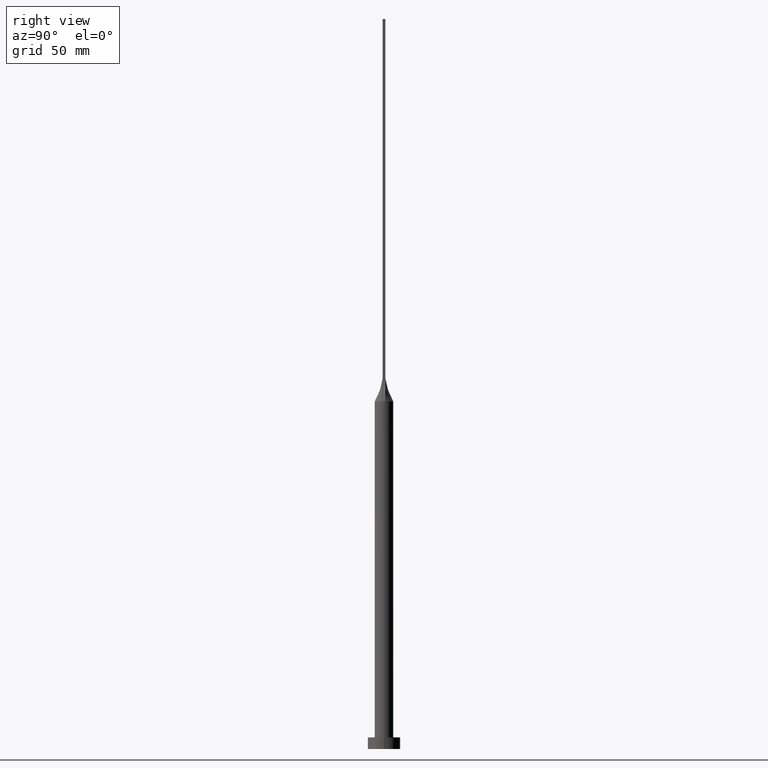
[diagram: clean part render]
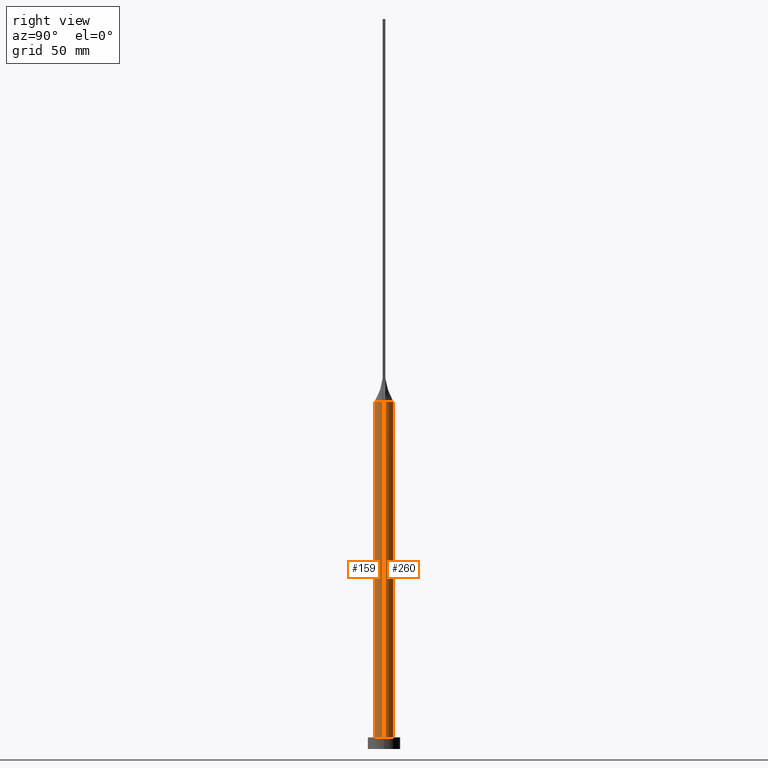
[diagram: same view with one multi-face feature highlighted, each face labeled with its STEP entity id]
A machine part, right view. The highlighted faces form ONE feature: a constant-radius fillet chain: 2 tangent blend faces with common blend radius 4 mm. The faces share edges in the B-rep.
Their STEP definitions:
[1] entity #159 (Cylinder):
#2 = DIRECTION ( 'NONE',  ( 0.000000000000000000, 0.000000000000000000, 1.000000000000000000 ) ) ;
#8 = DIRECTION ( 'NONE',  ( 0.000000000000000000, 0.000000000000000000, 1.000000000000000000 ) ) ;
#12 = CARTESIAN_POINT ( 'NONE',  ( 0.000000000000000000, 0.000000000000000000, 150.0000000000000000 ) ) ;
#37 = CARTESIAN_POINT ( 'NONE',  ( 0.000000000000000000, 0.000000000000000000, 150.0000000000000000 ) ) ;
#38 = CARTESIAN_POINT ( 'NONE',  ( 3.999842262273348936, 9.852009208038395466E-16, 150.0000000000000000 ) ) ;
#45 = CARTESIAN_POINT ( 'NONE',  ( -4.000000000000000000, 0.000000000000000000, 150.0000000000000000 ) ) ;
#50 = CARTESIAN_POINT ( 'NONE',  ( 4.000000000000000000, 4.898587196589412829E-16, 150.0000000000000000 ) ) ;
#74 = VERTEX_POINT ( 'NONE', #483 ) ;
#91 = ORIENTED_EDGE ( 'NONE', *, *, #470, .F. ) ;
#102 = CIRCLE ( 'NONE', #294, 4.000000000000000000 ) ;
#128 = VECTOR ( 'NONE', #317, 1000.000000000000000 ) ;
#131 = DIRECTION ( 'NONE',  ( 1.000000000000000000, 0.000000000000000000, 0.000000000000000000 ) ) ;
#136 = AXIS2_PLACEMENT_3D ( 'NONE', #12, #234, #417 ) ;
#151 = AXIS2_PLACEMENT_3D ( 'NONE', #530, #297, #443 ) ;
#159 = ADVANCED_FACE ( 'NONE', ( #212 ), #162, .T. ) ;
#162 = CYLINDRICAL_SURFACE ( 'NONE', #151, 4.000000000000000000 ) ;
#164 = CIRCLE ( 'NONE', #136, 4.000000000000000000 ) ;
#200 = EDGE_LOOP ( 'NONE', ( #91, #270, #469, #250, #233, #431 ) ) ;
#212 = FACE_OUTER_BOUND ( 'NONE', #200, .T. ) ;
#214 = DIRECTION ( 'NONE',  ( 1.000000000000000000, 9.769962616701377556E-15, 0.000000000000000000 ) ) ;
#226 = DIRECTION ( 'NONE',  ( -0.000000000000000000, -0.000000000000000000, -1.000000000000000000 ) ) ;
#230 = LINE ( 'NONE', #45, #355 ) ;
#233 = ORIENTED_EDGE ( 'NONE', *, *, #507, .T. ) ;
#234 = DIRECTION ( 'NONE',  ( 0.000000000000000000, 0.000000000000000000, 1.000000000000000000 ) ) ;
#245 = VERTEX_POINT ( 'NONE', #38 ) ;
#248 = CIRCLE ( 'NONE', #315, 4.000000000000000000 ) ;
#250 = ORIENTED_EDGE ( 'NONE', *, *, #328, .F. ) ;
#270 = ORIENTED_EDGE ( 'NONE', *, *, #385, .F. ) ;
#283 = CARTESIAN_POINT ( 'NONE',  ( -3.950111798046394007, -0.6320171791297864994, 150.0000000000000000 ) ) ;
#291 = EDGE_CURVE ( 'NONE', #544, #416, #410, .T. ) ;
#294 = AXIS2_PLACEMENT_3D ( 'NONE', #37, #298, #214 ) ;
#297 = DIRECTION ( 'NONE',  ( -0.000000000000000000, -0.000000000000000000, -1.000000000000000000 ) ) ;
#298 = DIRECTION ( 'NONE',  ( 0.000000000000000000, 0.000000000000000000, 1.000000000000000000 ) ) ;
#315 = AXIS2_PLACEMENT_3D ( 'NONE', #412, #8, #367 ) ;
#317 = DIRECTION ( 'NONE',  ( -0.000000000000000000, -0.000000000000000000, -1.000000000000000000 ) ) ;
#328 = EDGE_CURVE ( 'NONE', #495, #544, #164, .T. ) ;
#355 = VECTOR ( 'NONE', #226, 1000.000000000000000 ) ;
#356 = CARTESIAN_POINT ( 'NONE',  ( 0.000000000000000000, 0.000000000000000000, 150.0000000000000000 ) ) ;
#367 = DIRECTION ( 'NONE',  ( 1.000000000000000000, 0.000000000000000000, 0.000000000000000000 ) ) ;
#385 = EDGE_CURVE ( 'NONE', #416, #245, #102, .T. ) ;
#407 = LINE ( 'NONE', #50, #128 ) ;
#410 = CIRCLE ( 'NONE', #484, 4.000000000000000000 ) ;
#412 = CARTESIAN_POINT ( 'NONE',  ( 0.000000000000000000, 0.000000000000000000, 5.000000000000000000 ) ) ;
#416 = VERTEX_POINT ( 'NONE', #531 ) ;
#417 = DIRECTION ( 'NONE',  ( 1.000000000000000000, 0.000000000000000000, 0.000000000000000000 ) ) ;
#431 = ORIENTED_EDGE ( 'NONE', *, *, #523, .T. ) ;
#443 = DIRECTION ( 'NONE',  ( -1.000000000000000000, 0.000000000000000000, 0.000000000000000000 ) ) ;
#458 = VERTEX_POINT ( 'NONE', #543 ) ;
#469 = ORIENTED_EDGE ( 'NONE', *, *, #291, .F. ) ;
#470 = EDGE_CURVE ( 'NONE', #245, #458, #407, .T. ) ;
#483 = CARTESIAN_POINT ( 'NONE',  ( -4.000000000000000000, 0.000000000000000000, 5.000000000000000000 ) ) ;
#484 = AXIS2_PLACEMENT_3D ( 'NONE', #356, #2, #131 ) ;
#495 = VERTEX_POINT ( 'NONE', #540 ) ;
#507 = EDGE_CURVE ( 'NONE', #495, #74, #230, .T. ) ;
#523 = EDGE_CURVE ( 'NONE', #74, #458, #248, .T. ) ;
#530 = CARTESIAN_POINT ( 'NONE',  ( 0.000000000000000000, 0.000000000000000000, 150.0000000000000000 ) ) ;
#531 = CARTESIAN_POINT ( 'NONE',  ( 3.950116941581656604, -0.6320178829360038053, 150.0000000000000000 ) ) ;
#540 = CARTESIAN_POINT ( 'NONE',  ( -3.999842262273348048, -9.740943882706926662E-16, 150.0000000000000000 ) ) ;
#543 = CARTESIAN_POINT ( 'NONE',  ( 4.000000000000000000, 4.898587196589412829E-16, 5.000000000000000000 ) ) ;
#544 = VERTEX_POINT ( 'NONE', #283 ) ;
[2] entity #260 (Cylinder):
#9 = CARTESIAN_POINT ( 'NONE',  ( 0.5684794080625145130, 4.000000000000000000, 150.0000000000000000 ) ) ;
#15 = ORIENTED_EDGE ( 'NONE', *, *, #321, .F. ) ;
#19 = EDGE_LOOP ( 'NONE', ( #207, #339, #467, #167, #149, #15 ) ) ;
#33 = CIRCLE ( 'NONE', #222, 4.000000000000000000 ) ;
#38 = CARTESIAN_POINT ( 'NONE',  ( 3.999842262273348936, 9.852009208038395466E-16, 150.0000000000000000 ) ) ;
#44 = CARTESIAN_POINT ( 'NONE',  ( 3.219262664220058134, 2.422342486356523938, 150.0000000000000000 ) ) ;
#45 = CARTESIAN_POINT ( 'NONE',  ( -4.000000000000000000, 0.000000000000000000, 150.0000000000000000 ) ) ;
#46 = DIRECTION ( 'NONE',  ( 0.000000000000000000, 0.000000000000000000, 1.000000000000000000 ) ) ;
#49 = CARTESIAN_POINT ( 'NONE',  ( -2.127794970397209884, 3.430476893735948440, 150.0000000000000000 ) ) ;
#50 = CARTESIAN_POINT ( 'NONE',  ( 4.000000000000000000, 4.898587196589412829E-16, 150.0000000000000000 ) ) ;
#74 = VERTEX_POINT ( 'NONE', #483 ) ;
#90 = DIRECTION ( 'NONE',  ( 0.000000000000000000, 0.000000000000000000, 1.000000000000000000 ) ) ;
#96 = CARTESIAN_POINT ( 'NONE',  ( 2.127794970397208107, 3.430476893735948885, 150.0000000000000000 ) ) ;
#98 = CARTESIAN_POINT ( 'NONE',  ( -0.5684794080625158452, 3.999999999999999112, 149.9999999999999432 ) ) ;
#114 = VERTEX_POINT ( 'NONE', #157 ) ;
#126 = CARTESIAN_POINT ( 'NONE',  ( 3.950097303404373150, 0.6320148730971616446, 150.0000000000000000 ) ) ;
#128 = VECTOR ( 'NONE', #317, 1000.000000000000000 ) ;
#135 = CARTESIAN_POINT ( 'NONE',  ( 0.000000000000000000, 0.000000000000000000, 150.0000000000000000 ) ) ;
#140 = CARTESIAN_POINT ( 'NONE',  ( 3.461914487322979017, 2.043998057340944197, 150.0000000000000000 ) ) ;
#142 = CARTESIAN_POINT ( 'NONE',  ( -3.219262664220059023, 2.422342486356523938, 150.0000000000000284 ) ) ;
#149 = ORIENTED_EDGE ( 'NONE', *, *, #252, .F. ) ;
#156 = VERTEX_POINT ( 'NONE', #126 ) ;
#157 = CARTESIAN_POINT ( 'NONE',  ( -3.950102418235696522, 0.6320155757311002320, 150.0000000000000000 ) ) ;
#167 = ORIENTED_EDGE ( 'NONE', *, *, #507, .F. ) ;
#205 = AXIS2_PLACEMENT_3D ( 'NONE', #411, #536, #447 ) ;
#207 = ORIENTED_EDGE ( 'NONE', *, *, #574, .F. ) ;
#220 = CARTESIAN_POINT ( 'NONE',  ( -3.461914487322979905, 2.043998057340944197, 150.0000000000000568 ) ) ;
#222 = AXIS2_PLACEMENT_3D ( 'NONE', #362, #90, #266 ) ;
#225 = CARTESIAN_POINT ( 'NONE',  ( 1.134810363096318664, 3.874001625491799050, 149.9999999999999716 ) ) ;
#226 = DIRECTION ( 'NONE',  ( -0.000000000000000000, -0.000000000000000000, -1.000000000000000000 ) ) ;
#228 = CIRCLE ( 'NONE', #446, 4.000000000000000000 ) ;
#229 = FACE_OUTER_BOUND ( 'NONE', #19, .T. ) ;
#230 = LINE ( 'NONE', #45, #355 ) ;
#245 = VERTEX_POINT ( 'NONE', #38 ) ;
#252 = EDGE_CURVE ( 'NONE', #114, #495, #228, .T. ) ;
#260 = ADVANCED_FACE ( 'NONE', ( #229 ), #406, .T. ) ;
#266 = DIRECTION ( 'NONE',  ( 1.000000000000000000, 0.000000000000000000, 0.000000000000000000 ) ) ;
#268 = CARTESIAN_POINT ( 'NONE',  ( 3.950097303404373150, 0.6320148730971616446, 150.0000000000000000 ) ) ;
#275 = CARTESIAN_POINT ( 'NONE',  ( -1.134810363096319996, 3.874001625491799938, 150.0000000000000284 ) ) ;
#306 = B_SPLINE_CURVE_WITH_KNOTS ( 'NONE', 3,
 ( #268, #550, #547, #140, #44, #450, #96, #225, #9, #98, #275, #49, #369, #142, #220, #309, #493, #371 ),
 .UNSPECIFIED., .F., .F.,
 ( 4, 2, 2, 2, 2, 2, 2, 2, 4 ),
 ( 0.000000000000000000, 0.1249999999999999445, 0.2499999999999998890, 0.3749999999999998335, 0.4999999999999997780, 0.6249999999999997780, 0.7499999999999998890, 0.8749999999999998890, 1.000000000000000000 ),
 .UNSPECIFIED. ) ;
#309 = CARTESIAN_POINT ( 'NONE',  ( -3.800365609718893811, 1.311488165564686392, 150.0000000000000284 ) ) ;
#317 = DIRECTION ( 'NONE',  ( -0.000000000000000000, -0.000000000000000000, -1.000000000000000000 ) ) ;
#321 = EDGE_CURVE ( 'NONE', #156, #114, #306, .T. ) ;
#339 = ORIENTED_EDGE ( 'NONE', *, *, #470, .T. ) ;
#346 = CIRCLE ( 'NONE', #508, 4.000000000000000000 ) ;
#355 = VECTOR ( 'NONE', #226, 1000.000000000000000 ) ;
#361 = DIRECTION ( 'NONE',  ( 1.000000000000000000, 0.000000000000000000, 0.000000000000000000 ) ) ;
#362 = CARTESIAN_POINT ( 'NONE',  ( 0.000000000000000000, 0.000000000000000000, 5.000000000000000000 ) ) ;
#369 = CARTESIAN_POINT ( 'NONE',  ( -2.553164211252348714, 3.116528153703943538, 150.0000000000000000 ) ) ;
#371 = CARTESIAN_POINT ( 'NONE',  ( -3.950102418235696522, 0.6320155757311002320, 150.0000000000000000 ) ) ;
#379 = DIRECTION ( 'NONE',  ( 1.000000000000000000, 0.000000000000000000, 0.000000000000000000 ) ) ;
#406 = CYLINDRICAL_SURFACE ( 'NONE', #205, 4.000000000000000000 ) ;
#407 = LINE ( 'NONE', #50, #128 ) ;
#411 = CARTESIAN_POINT ( 'NONE',  ( 0.000000000000000000, 0.000000000000000000, 150.0000000000000000 ) ) ;
#446 = AXIS2_PLACEMENT_3D ( 'NONE', #135, #46, #361 ) ;
#447 = DIRECTION ( 'NONE',  ( -1.000000000000000000, 0.000000000000000000, 0.000000000000000000 ) ) ;
#450 = CARTESIAN_POINT ( 'NONE',  ( 2.553164211252348714, 3.116528153703943538, 150.0000000000000000 ) ) ;
#458 = VERTEX_POINT ( 'NONE', #543 ) ;
#467 = ORIENTED_EDGE ( 'NONE', *, *, #520, .T. ) ;
#470 = EDGE_CURVE ( 'NONE', #245, #458, #407, .T. ) ;
#483 = CARTESIAN_POINT ( 'NONE',  ( -4.000000000000000000, 0.000000000000000000, 5.000000000000000000 ) ) ;
#493 = CARTESIAN_POINT ( 'NONE',  ( -3.897760447583618504, 0.9569750049467115049, 150.0000000000000568 ) ) ;
#495 = VERTEX_POINT ( 'NONE', #540 ) ;
#507 = EDGE_CURVE ( 'NONE', #495, #74, #230, .T. ) ;
#508 = AXIS2_PLACEMENT_3D ( 'NONE', #515, #517, #379 ) ;
#515 = CARTESIAN_POINT ( 'NONE',  ( 0.000000000000000000, 0.000000000000000000, 150.0000000000000000 ) ) ;
#517 = DIRECTION ( 'NONE',  ( 0.000000000000000000, 0.000000000000000000, 1.000000000000000000 ) ) ;
#520 = EDGE_CURVE ( 'NONE', #458, #74, #33, .T. ) ;
#536 = DIRECTION ( 'NONE',  ( -0.000000000000000000, -0.000000000000000000, -1.000000000000000000 ) ) ;
#540 = CARTESIAN_POINT ( 'NONE',  ( -3.999842262273348048, -9.740943882706926662E-16, 150.0000000000000000 ) ) ;
#543 = CARTESIAN_POINT ( 'NONE',  ( 4.000000000000000000, 4.898587196589412829E-16, 5.000000000000000000 ) ) ;
#547 = CARTESIAN_POINT ( 'NONE',  ( 3.800365609718893367, 1.311488165564687058, 150.0000000000000284 ) ) ;
#550 = CARTESIAN_POINT ( 'NONE',  ( 3.897760447583618948, 0.9569750049467118380, 149.9999999999999716 ) ) ;
#574 = EDGE_CURVE ( 'NONE', #245, #156, #346, .T. ) ;